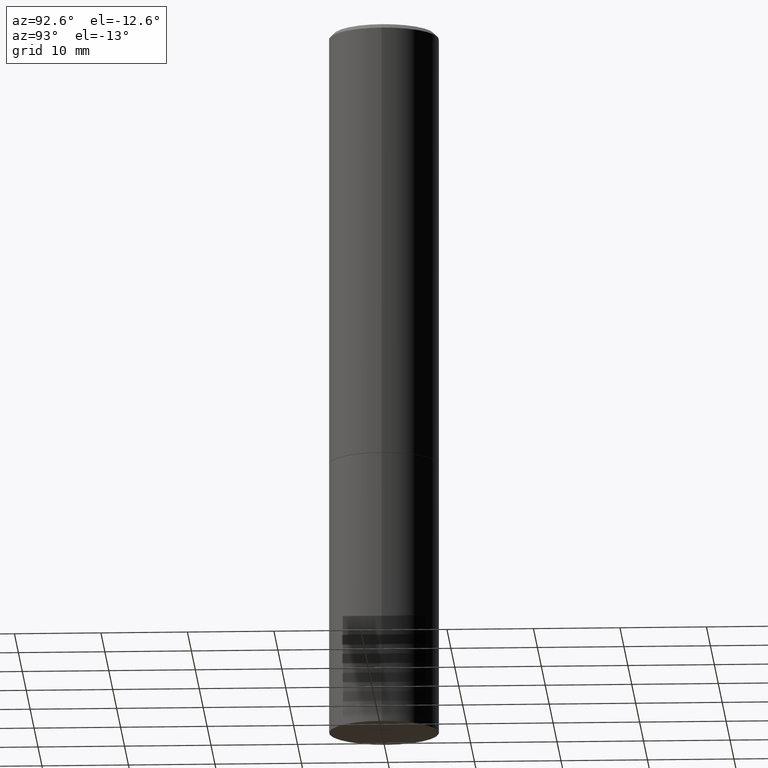
[diagram: clean part render]
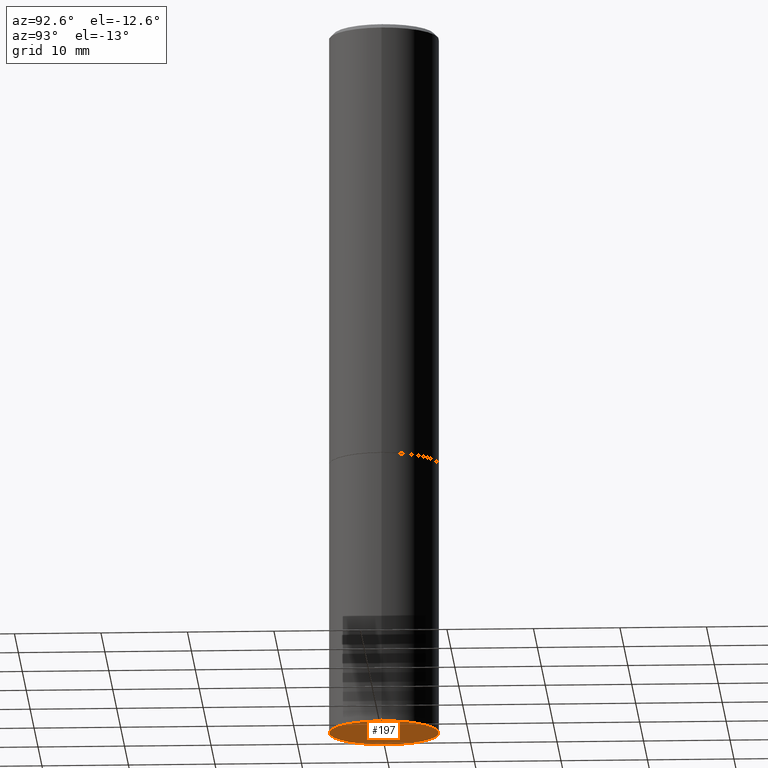
[diagram: same view with one face highlighted and labeled with its STEP entity id]
A machine part, auxiliary view. The second image highlights one B-rep face of the part: STEP entity #197.
In plain terms, the highlighted planar face has unit normal (0, -0, -1).
Its self-contained STEP definition (entity closure, byte-faithful):
#1 = CARTESIAN_POINT ( 'NONE',  ( 7.947773620101693940E-29, -1.134731435124022443E-14, -3.250000000000000000 ) ) ;
#7 = AXIS2_PLACEMENT_3D ( 'NONE', #85, #186, #196 ) ;
#24 = DIRECTION ( 'NONE',  ( -2.445468806185136597E-29, 3.491481338843145583E-15, 1.000000000000000000 ) ) ;
#29 = EDGE_LOOP ( 'NONE', ( #148, #341 ) ) ;
#85 = CARTESIAN_POINT ( 'NONE',  ( 7.947773620101693940E-29, -1.134731435124022443E-14, -3.250000000000000000 ) ) ;
#148 = ORIENTED_EDGE ( 'NONE', *, *, #301, .F. ) ;
#152 = PLANE ( 'NONE',  #363 ) ;
#175 = DIRECTION ( 'NONE',  ( -1.000000000000000000, 6.982962677686265922E-15, -4.876176775795935793E-29 ) ) ;
#186 = DIRECTION ( 'NONE',  ( -2.445468806185136597E-29, 3.491481338843145583E-15, 1.000000000000000000 ) ) ;
#190 = VERTEX_POINT ( 'NONE', #264 ) ;
#193 = AXIS2_PLACEMENT_3D ( 'NONE', #1, #24, #217 ) ;
#196 = DIRECTION ( 'NONE',  ( 1.000000000000000000, -6.982962677686262766E-15, 0.000000000000000000 ) ) ;
#197 = ADVANCED_FACE ( 'NONE', ( #287 ), #152, .T. ) ;
#204 = CARTESIAN_POINT ( 'NONE',  ( 1.745740669421645958E-15, 0.2499999999999886480, -3.250000000000001332 ) ) ;
#217 = DIRECTION ( 'NONE',  ( 1.000000000000000000, -6.982962677686262766E-15, 0.000000000000000000 ) ) ;
#229 = VERTEX_POINT ( 'NONE', #298 ) ;
#246 = EDGE_CURVE ( 'NONE', #229, #190, #309, .T. ) ;
#264 = CARTESIAN_POINT ( 'NONE',  ( 0.2500000000000000000, -1.309305502066178953E-14, -3.250000000000000000 ) ) ;
#287 = FACE_OUTER_BOUND ( 'NONE', #29, .T. ) ;
#298 = CARTESIAN_POINT ( 'NONE',  ( -0.2500000000000000000, -7.388781675063007725E-15, -3.250000000000000000 ) ) ;
#301 = EDGE_CURVE ( 'NONE', #190, #229, #329, .T. ) ;
#309 = CIRCLE ( 'NONE', #193, 0.2500000000000000000 ) ;
#312 = DIRECTION ( 'NONE',  ( 2.438088387897960049E-29, -3.491481338843145188E-15, -1.000000000000000000 ) ) ;
#329 = CIRCLE ( 'NONE', #7, 0.2500000000000000000 ) ;
#341 = ORIENTED_EDGE ( 'NONE', *, *, #246, .F. ) ;
#363 = AXIS2_PLACEMENT_3D ( 'NONE', #204, #312, #175 ) ;